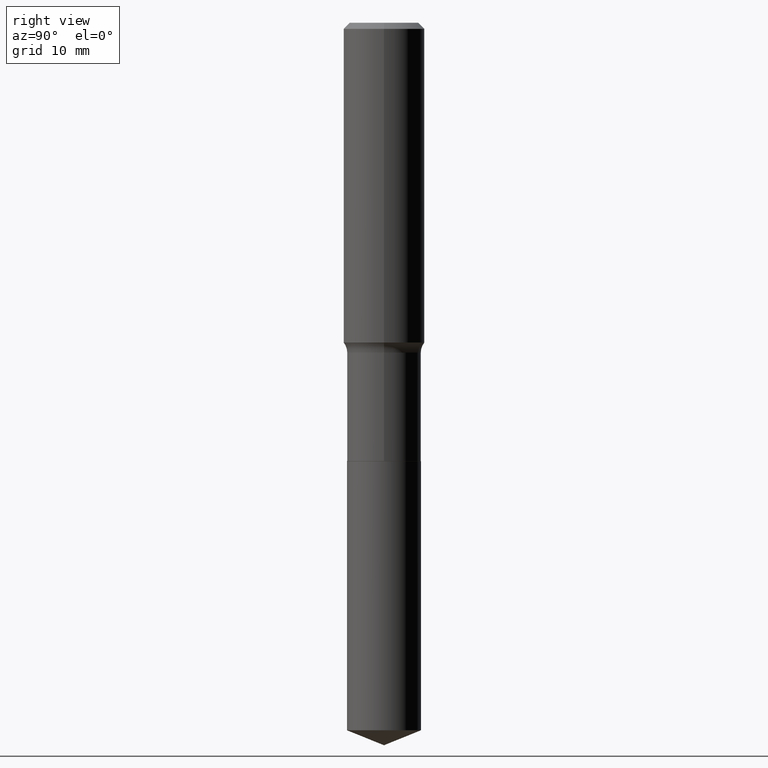
[diagram: clean part render]
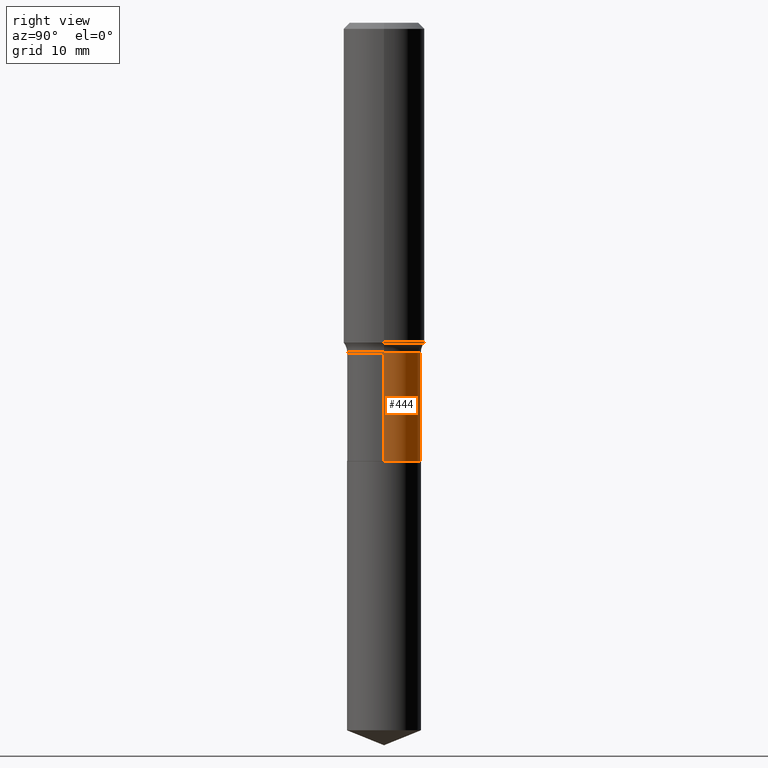
[diagram: same view with one face highlighted and labeled with its STEP entity id]
A machine part, right view. The second image highlights one B-rep face of the part: STEP entity #444.
In plain terms, the highlighted cylindrical surface (partial cylindrical patch) has radius 4.5644 mm, axis along (-0, 0, 1).
Its self-contained STEP definition (entity closure, byte-faithful):
#3 = DIRECTION ( 'NONE',  ( 1.000000000000000000, -6.982962677686265922E-15, 4.876176775795935232E-29 ) ) ;
#4 = EDGE_CURVE ( 'NONE', #477, #219, #17, .T. ) ;
#7 = CARTESIAN_POINT ( 'NONE',  ( 3.911771902373742968E-29, -5.584973549613493521E-15, -1.599599999999999467 ) ) ;
#17 = CIRCLE ( 'NONE', #256, 0.1796999999999999431 ) ;
#27 = EDGE_LOOP ( 'NONE', ( #368, #151, #440, #422 ) ) ;
#62 = CARTESIAN_POINT ( 'NONE',  ( 0.1796999999999999986, -8.675632830757443346E-15, -2.125399999999999956 ) ) ;
#73 = CARTESIAN_POINT ( 'NONE',  ( -0.1796999999999999431, -5.226038697434457346E-15, -1.599599999999999467 ) ) ;
#85 = DIRECTION ( 'NONE',  ( 1.000000000000000000, -6.982962677686267499E-15, 0.000000000000000000 ) ) ;
#117 = CARTESIAN_POINT ( 'NONE',  ( -0.1796999999999999986, -5.226038697434456558E-15, -2.125399999999999956 ) ) ;
#124 = DIRECTION ( 'NONE',  ( -2.445468806185136597E-29, 3.491481338843145583E-15, 1.000000000000000000 ) ) ;
#128 = LINE ( 'NONE', #419, #338 ) ;
#145 = CARTESIAN_POINT ( 'NONE',  ( 5.197599400665889285E-29, -7.420794437577220826E-15, -2.125399999999999956 ) ) ;
#151 = ORIENTED_EDGE ( 'NONE', *, *, #404, .T. ) ;
#169 = VERTEX_POINT ( 'NONE', #62 ) ;
#184 = FACE_OUTER_BOUND ( 'NONE', #27, .T. ) ;
#209 = LINE ( 'NONE', #239, #431 ) ;
#219 = VERTEX_POINT ( 'NONE', #73 ) ;
#222 = CIRCLE ( 'NONE', #463, 0.1796999999999999986 ) ;
#225 = DIRECTION ( 'NONE',  ( -2.445468806185136597E-29, 3.491481338843145583E-15, 1.000000000000000000 ) ) ;
#227 = DIRECTION ( 'NONE',  ( 1.000000000000000000, -6.982962677686264344E-15, 0.000000000000000000 ) ) ;
#228 = CARTESIAN_POINT ( 'NONE',  ( 0.000000000000000000, 0.000000000000000000, 0.000000000000000000 ) ) ;
#239 = CARTESIAN_POINT ( 'NONE',  ( -0.1796999999999999709, 1.276845296160899827E-15, -8.839326357188064184E-30 ) ) ;
#250 = EDGE_CURVE ( 'NONE', #169, #356, #222, .T. ) ;
#256 = AXIS2_PLACEMENT_3D ( 'NONE', #7, #124, #227 ) ;
#309 = DIRECTION ( 'NONE',  ( -2.445468806185136877E-29, 3.491481338843145188E-15, 1.000000000000000000 ) ) ;
#338 = VECTOR ( 'NONE', #486, 39.37007874015748143 ) ;
#340 = AXIS2_PLACEMENT_3D ( 'NONE', #228, #225, #3 ) ;
#343 = CYLINDRICAL_SURFACE ( 'NONE', #340, 0.1796999999999999709 ) ;
#356 = VERTEX_POINT ( 'NONE', #117 ) ;
#368 = ORIENTED_EDGE ( 'NONE', *, *, #250, .T. ) ;
#376 = DIRECTION ( 'NONE',  ( -2.445468806185136597E-29, 3.491481338843145583E-15, 1.000000000000000000 ) ) ;
#381 = CARTESIAN_POINT ( 'NONE',  ( 0.1796999999999999431, -6.839811942793715251E-15, -1.599599999999999467 ) ) ;
#404 = EDGE_CURVE ( 'NONE', #356, #219, #209, .T. ) ;
#419 = CARTESIAN_POINT ( 'NONE',  ( 0.1796999999999999709, -1.254838393180221730E-15, 8.762489666105294243E-30 ) ) ;
#422 = ORIENTED_EDGE ( 'NONE', *, *, #425, .F. ) ;
#425 = EDGE_CURVE ( 'NONE', #169, #477, #128, .T. ) ;
#431 = VECTOR ( 'NONE', #309, 39.37007874015748143 ) ;
#440 = ORIENTED_EDGE ( 'NONE', *, *, #4, .F. ) ;
#444 = ADVANCED_FACE ( 'NONE', ( #184 ), #343, .T. ) ;
#463 = AXIS2_PLACEMENT_3D ( 'NONE', #145, #376, #85 ) ;
#477 = VERTEX_POINT ( 'NONE', #381 ) ;
#486 = DIRECTION ( 'NONE',  ( -2.445468806185136877E-29, 3.491481338843145188E-15, 1.000000000000000000 ) ) ;